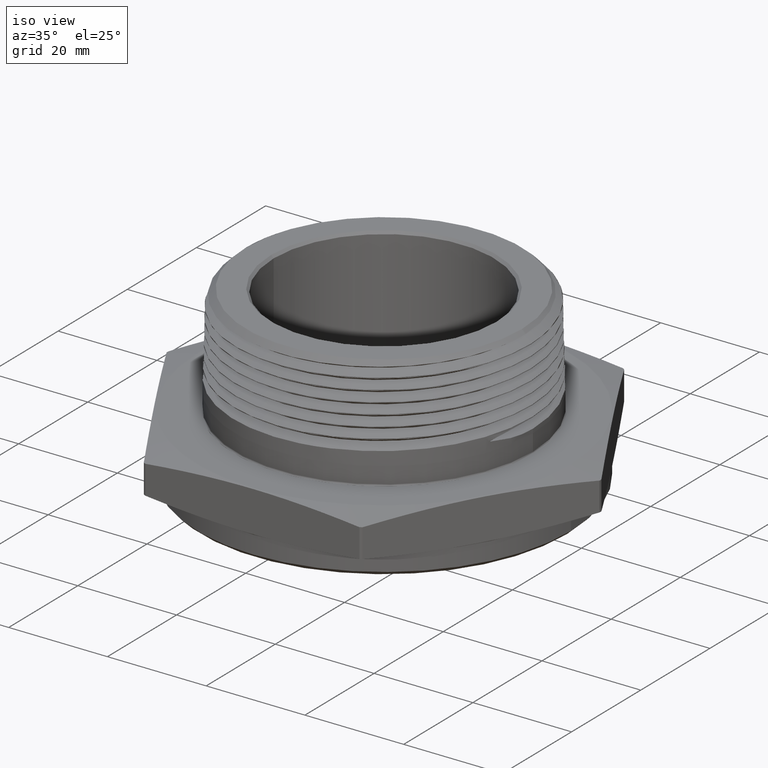
[diagram: clean part render]
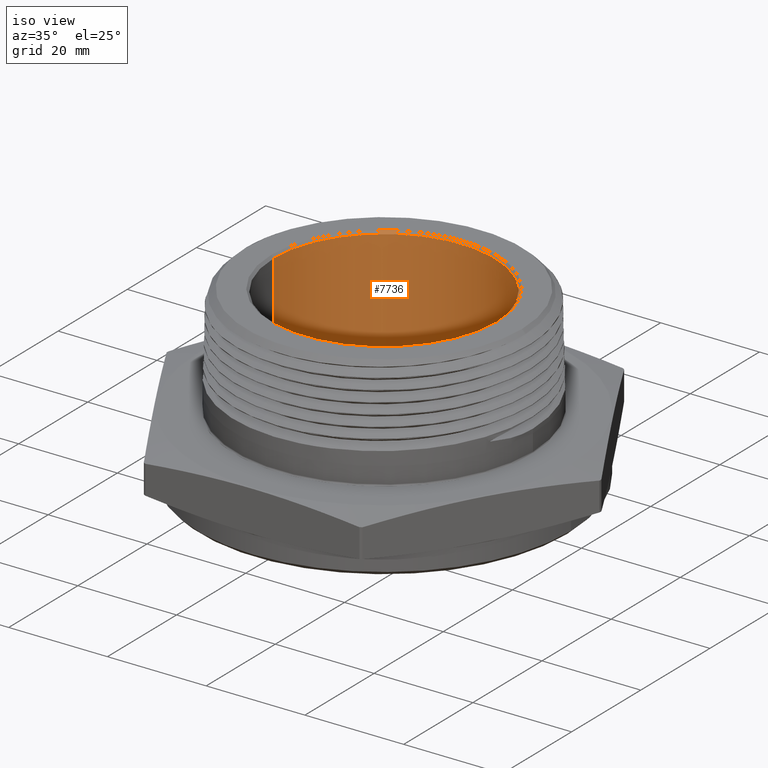
[diagram: same view with one face highlighted and labeled with its STEP entity id]
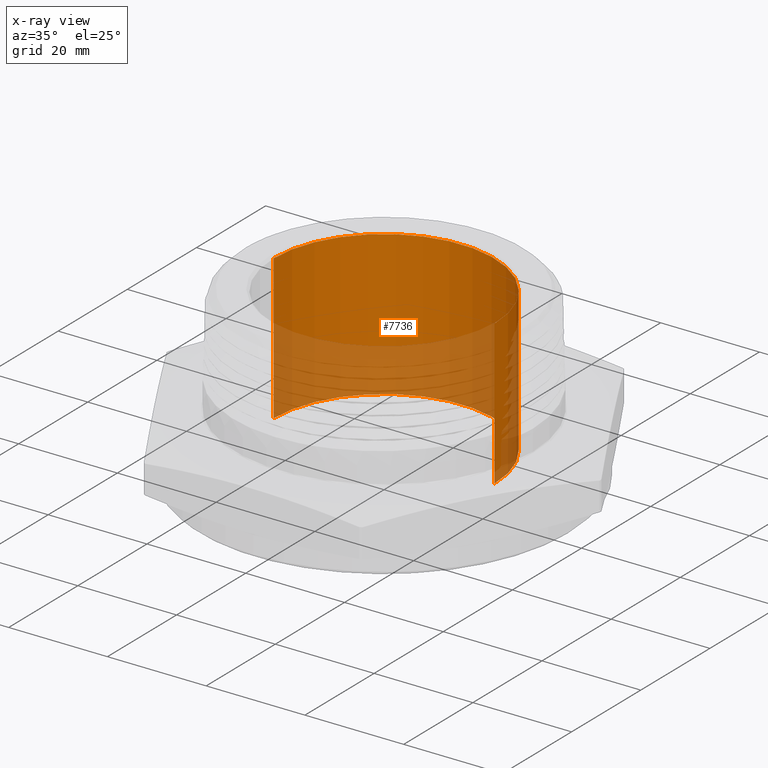
[diagram: x-ray of the same camera — body ghosted, the highlighted face saturated]
A machine part, iso view. The second image highlights one B-rep face of the part: STEP entity #7736.
The next image is the same camera in x-ray: the body ghosted, the highlighted face saturated — about 39% of this face is hidden behind the body in this view.
In plain terms, the highlighted cylindrical surface (partial cylindrical patch) has radius 22.352 mm, axis along (-0, -0, -1).
Its self-contained STEP definition (entity closure, byte-faithful):
#597 = VERTEX_POINT ( 'NONE', #7019 ) ;
#635 = VERTEX_POINT ( 'NONE', #6973 ) ;
#636 = VERTEX_POINT ( 'NONE', #6972 ) ;
#641 = VERTEX_POINT ( 'NONE', #6967 ) ;
#716 = EDGE_LOOP ( 'NONE', ( #6136, #6139, #6142, #6191 ) ) ;
#1603 = DIRECTION ( 'NONE',  ( -3.343854012755361800E-017, -0.0000000000000000000, -1.000000000000000000 ) ) ;
#1605 = DIRECTION ( 'NONE',  ( -1.000000000000000000, 0.0000000000000000000, 3.880465900091283700E-017 ) ) ;
#1607 = CARTESIAN_POINT ( 'NONE',  ( 3.673940397442043800E-018, 0.0000000000000000000, -0.1799999999999999900 ) ) ;
#3622 = EDGE_CURVE ( 'NONE', #636, #635, #5976, .T. ) ;
#3623 = EDGE_CURVE ( 'NONE', #641, #597, #5977, .T. ) ;
#3699 = EDGE_CURVE ( 'NONE', #641, #636, #6064, .T. ) ;
#3702 = EDGE_CURVE ( 'NONE', #597, #635, #6068, .T. ) ;
#3766 = AXIS2_PLACEMENT_3D ( 'NONE', #7456, #7457, #7458 ) ;
#3767 = AXIS2_PLACEMENT_3D ( 'NONE', #7461, #7462, #7463 ) ;
#3822 = AXIS2_PLACEMENT_3D ( 'NONE', #1607, #1603, #1605 ) ;
#5976 = CIRCLE ( 'NONE', #3766, 0.8800000000000000000 ) ;
#5977 = CIRCLE ( 'NONE', #3767, 0.8799999999999998900 ) ;
#6064 = LINE ( 'NONE', #6860, #6066 ) ;
#6066 = VECTOR ( 'NONE', #6861, 39.37007874015748100 ) ;
#6068 = LINE ( 'NONE', #6875, #6071 ) ;
#6071 = VECTOR ( 'NONE', #6876, 39.37007874015748100 ) ;
#6097 = FACE_OUTER_BOUND ( 'NONE', #716, .T. ) ;
#6106 = CYLINDRICAL_SURFACE ( 'NONE', #3822, 0.8799999999999998900 ) ;
#6136 = ORIENTED_EDGE ( 'NONE', *, *, #3702, .F. ) ;
#6139 = ORIENTED_EDGE ( 'NONE', *, *, #3623, .F. ) ;
#6142 = ORIENTED_EDGE ( 'NONE', *, *, #3699, .T. ) ;
#6191 = ORIENTED_EDGE ( 'NONE', *, *, #3622, .T. ) ;
#6860 = CARTESIAN_POINT ( 'NONE',  ( -0.8799999999999998900, 0.0000000000000000000, -0.1799999999999999700 ) ) ;
#6861 = DIRECTION ( 'NONE',  ( -3.343854012755361800E-017, -0.0000000000000000000, -1.000000000000000000 ) ) ;
#6875 = CARTESIAN_POINT ( 'NONE',  ( 0.8799999999999998900, 1.077689183249670700E-016, -0.1800000000000000200 ) ) ;
#6876 = DIRECTION ( 'NONE',  ( -3.343854012755361800E-017, -0.0000000000000000000, -1.000000000000000000 ) ) ;
#6967 = CARTESIAN_POINT ( 'NONE',  ( -0.8799999999999998900, 0.0000000000000000000, 1.179999999999999900 ) ) ;
#6972 = CARTESIAN_POINT ( 'NONE',  ( -0.8800000000000000000, 0.0000000000000000000, 0.02685039370078741100 ) ) ;
#6973 = CARTESIAN_POINT ( 'NONE',  ( 0.8800000000000000000, 1.077689183249671000E-016, 0.02685039370078735200 ) ) ;
#7019 = CARTESIAN_POINT ( 'NONE',  ( 0.8799999999999998900, 1.077689183249670700E-016, 1.179999999999999900 ) ) ;
#7456 = CARTESIAN_POINT ( 'NONE',  ( 1.059071558760608600E-017, 0.0000000000000000000, 0.02685039370078738000 ) ) ;
#7457 = DIRECTION ( 'NONE',  ( -3.343854012755361800E-017, -0.0000000000000000000, -1.000000000000000000 ) ) ;
#7458 = DIRECTION ( 'NONE',  ( -1.000000000000000000, 0.0000000000000000000, 3.395407662579872400E-017 ) ) ;
#7461 = CARTESIAN_POINT ( 'NONE',  ( 4.915035497091496200E-017, 0.0000000000000000000, 1.179999999999999900 ) ) ;
#7462 = DIRECTION ( 'NONE',  ( -3.343854012755361800E-017, -0.0000000000000000000, -1.000000000000000000 ) ) ;
#7463 = DIRECTION ( 'NONE',  ( -1.000000000000000000, 0.0000000000000000000, 0.0000000000000000000 ) ) ;
#7736 = ADVANCED_FACE ( 'NONE', ( #6097 ), #6106, .F. ) ;